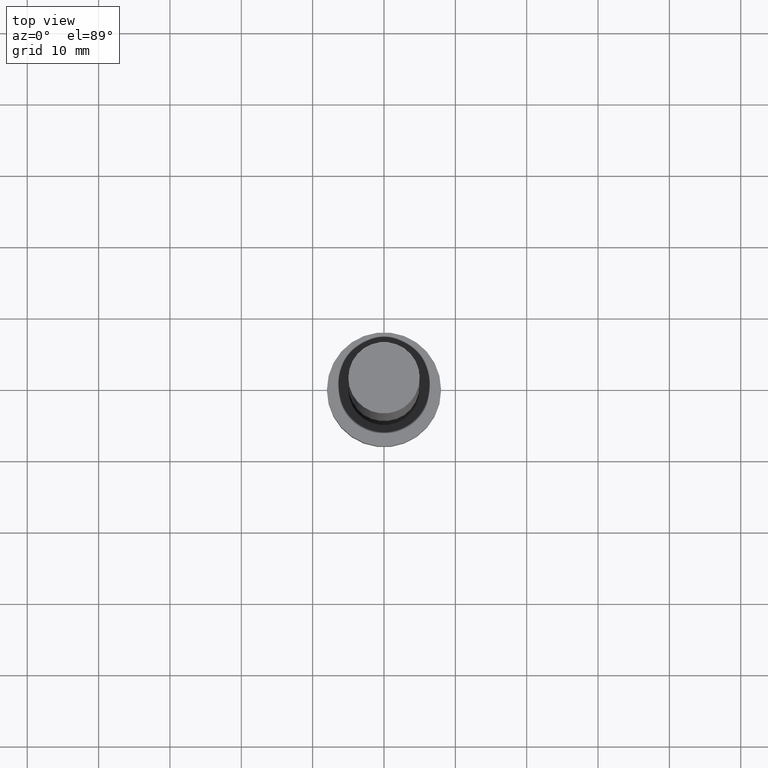
[diagram: clean part render]
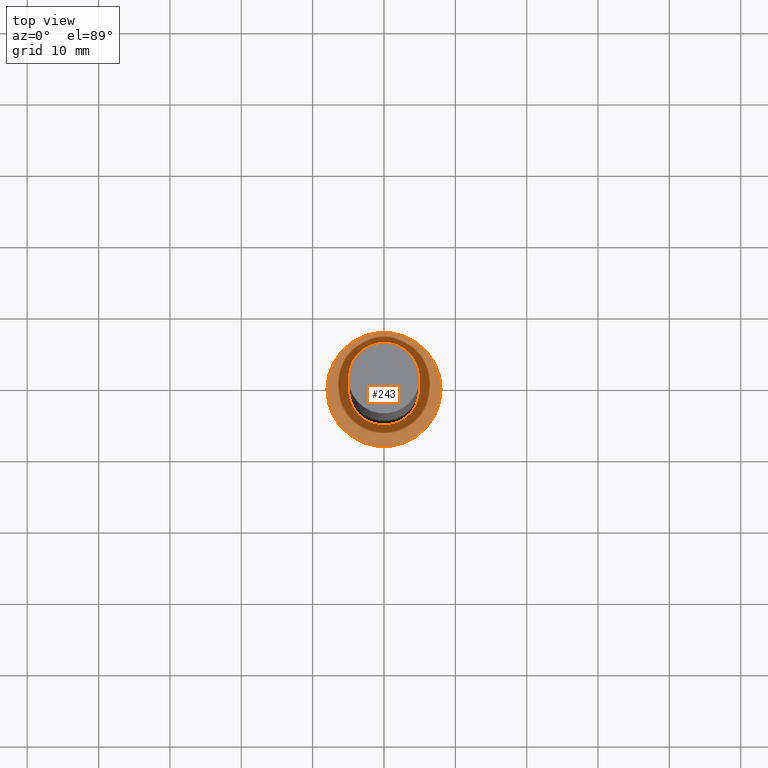
[diagram: same view with one face highlighted and labeled with its STEP entity id]
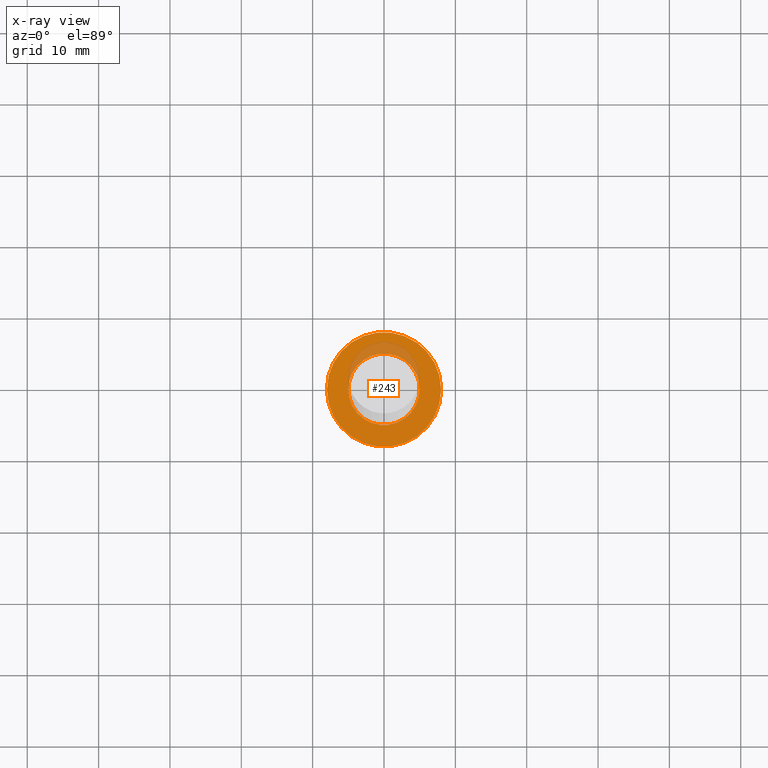
[diagram: x-ray of the same camera — body ghosted, the highlighted face saturated]
A machine part, top view. The second image highlights one B-rep face of the part: STEP entity #243.
The next image is the same camera in x-ray: the body ghosted, the highlighted face saturated — about 13% of this face is hidden behind the body in this view.
In plain terms, the highlighted planar face has unit normal (0, 0, 1).
Its self-contained STEP definition (entity closure, byte-faithful):
#5 = EDGE_CURVE ( 'NONE', #228, #62, #239, .T. ) ;
#9 = EDGE_LOOP ( 'NONE', ( #76, #58 ) ) ;
#18 = DIRECTION ( 'NONE',  ( 1.000000000000000000, 0.000000000000000000, 0.000000000000000000 ) ) ;
#21 = AXIS2_PLACEMENT_3D ( 'NONE', #107, #26, #194 ) ;
#23 = AXIS2_PLACEMENT_3D ( 'NONE', #71, #250, #202 ) ;
#26 = DIRECTION ( 'NONE',  ( 0.000000000000000000, 0.000000000000000000, 1.000000000000000000 ) ) ;
#28 = ORIENTED_EDGE ( 'NONE', *, *, #253, .T. ) ;
#34 = CARTESIAN_POINT ( 'NONE',  ( 0.000000000000000000, 0.000000000000000000, 6.500000000000000000 ) ) ;
#40 = VERTEX_POINT ( 'NONE', #187 ) ;
#41 = DIRECTION ( 'NONE',  ( 0.000000000000000000, 0.000000000000000000, 1.000000000000000000 ) ) ;
#51 = DIRECTION ( 'NONE',  ( 0.000000000000000000, 0.000000000000000000, 1.000000000000000000 ) ) ;
#58 = ORIENTED_EDGE ( 'NONE', *, *, #236, .F. ) ;
#62 = VERTEX_POINT ( 'NONE', #75 ) ;
#67 = VERTEX_POINT ( 'NONE', #118 ) ;
#71 = CARTESIAN_POINT ( 'NONE',  ( 0.000000000000000000, 0.000000000000000000, 6.500000000000000000 ) ) ;
#73 = AXIS2_PLACEMENT_3D ( 'NONE', #145, #207, #18 ) ;
#75 = CARTESIAN_POINT ( 'NONE',  ( 5.000000000000000888, 6.123233995736767268E-16, 6.500000000000000000 ) ) ;
#76 = ORIENTED_EDGE ( 'NONE', *, *, #5, .F. ) ;
#78 = EDGE_CURVE ( 'NONE', #67, #40, #182, .T. ) ;
#94 = CIRCLE ( 'NONE', #240, 5.000000000000000888 ) ;
#103 = FACE_BOUND ( 'NONE', #9, .T. ) ;
#107 = CARTESIAN_POINT ( 'NONE',  ( 0.000000000000000000, 0.000000000000000000, 6.500000000000000000 ) ) ;
#118 = CARTESIAN_POINT ( 'NONE',  ( -8.000000000000000000, 0.000000000000000000, 6.500000000000000000 ) ) ;
#126 = DIRECTION ( 'NONE',  ( 1.000000000000000000, 0.000000000000000000, 0.000000000000000000 ) ) ;
#131 = EDGE_LOOP ( 'NONE', ( #150, #28 ) ) ;
#132 = PLANE ( 'NONE',  #203 ) ;
#145 = CARTESIAN_POINT ( 'NONE',  ( 0.000000000000000000, 0.000000000000000000, 6.500000000000000000 ) ) ;
#150 = ORIENTED_EDGE ( 'NONE', *, *, #78, .T. ) ;
#181 = FACE_OUTER_BOUND ( 'NONE', #131, .T. ) ;
#182 = CIRCLE ( 'NONE', #73, 8.000000000000000000 ) ;
#187 = CARTESIAN_POINT ( 'NONE',  ( 8.000000000000000000, 9.797174393178823685E-16, 6.500000000000000000 ) ) ;
#194 = DIRECTION ( 'NONE',  ( 1.000000000000000000, 0.000000000000000000, 0.000000000000000000 ) ) ;
#202 = DIRECTION ( 'NONE',  ( 1.000000000000000000, 0.000000000000000000, 0.000000000000000000 ) ) ;
#203 = AXIS2_PLACEMENT_3D ( 'NONE', #34, #41, #246 ) ;
#207 = DIRECTION ( 'NONE',  ( 0.000000000000000000, 0.000000000000000000, 1.000000000000000000 ) ) ;
#217 = CARTESIAN_POINT ( 'NONE',  ( 0.000000000000000000, 0.000000000000000000, 6.500000000000000000 ) ) ;
#218 = CARTESIAN_POINT ( 'NONE',  ( -5.000000000000000888, 0.000000000000000000, 6.500000000000000000 ) ) ;
#221 = CIRCLE ( 'NONE', #23, 8.000000000000000000 ) ;
#228 = VERTEX_POINT ( 'NONE', #218 ) ;
#236 = EDGE_CURVE ( 'NONE', #62, #228, #94, .T. ) ;
#239 = CIRCLE ( 'NONE', #21, 5.000000000000000888 ) ;
#240 = AXIS2_PLACEMENT_3D ( 'NONE', #217, #51, #126 ) ;
#243 = ADVANCED_FACE ( 'NONE', ( #103, #181 ), #132, .T. ) ;
#246 = DIRECTION ( 'NONE',  ( 1.000000000000000000, 0.000000000000000000, -0.000000000000000000 ) ) ;
#250 = DIRECTION ( 'NONE',  ( 0.000000000000000000, 0.000000000000000000, 1.000000000000000000 ) ) ;
#253 = EDGE_CURVE ( 'NONE', #40, #67, #221, .T. ) ;